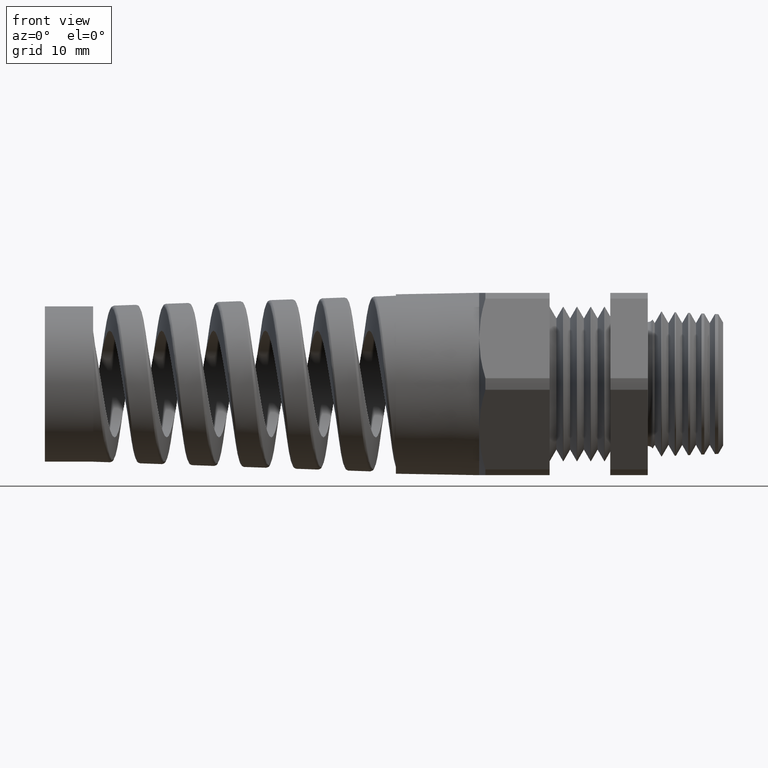
[diagram: clean part render]
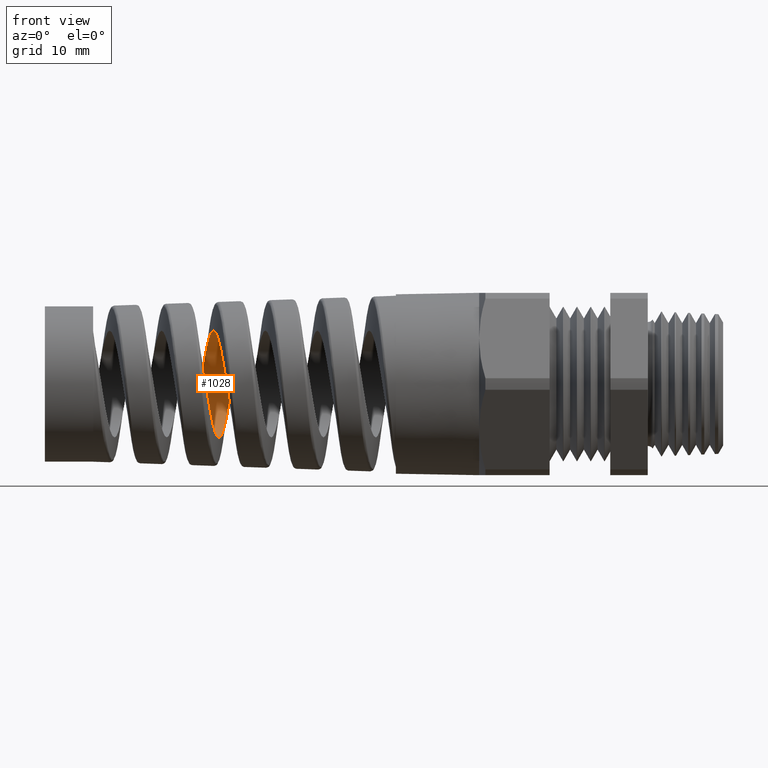
[diagram: same view with one face highlighted and labeled with its STEP entity id]
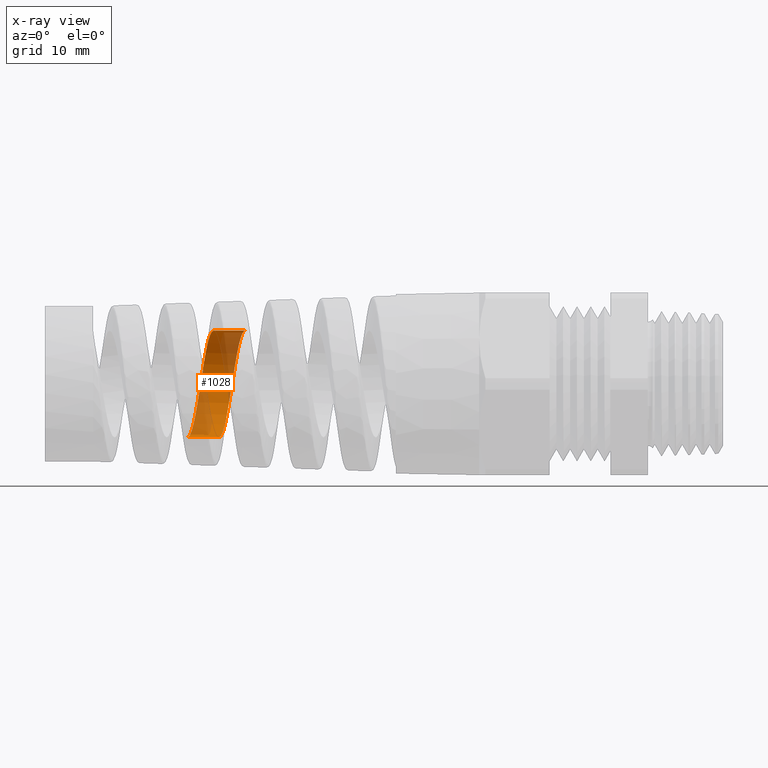
[diagram: x-ray of the same camera — body ghosted, the highlighted face saturated]
A machine part, front view. The second image highlights one B-rep face of the part: STEP entity #1028.
The next image is the same camera in x-ray: the body ghosted, the highlighted face saturated — about 44% of this face is hidden behind the body in this view.
In plain terms, the highlighted cylindrical surface (partial cylindrical patch) has radius 5.5762 mm, axis along (1, 0, 0).
Its self-contained STEP definition (entity closure, byte-faithful):
#1017 = ORIENTED_EDGE ( 'NONE', *, *, #9624, .T. ) ;
#1020 = ORIENTED_EDGE ( 'NONE', *, *, #1021, .F. ) ;
#1021 = EDGE_CURVE ( 'NONE', #9929, #6168, #8122, .T. ) ;
#1022 = ORIENTED_EDGE ( 'NONE', *, *, #1023, .F. ) ;
#1023 = EDGE_CURVE ( 'NONE', #6165, #9626, #8163, .T. ) ;
#1024 = ORIENTED_EDGE ( 'NONE', *, *, #6164, .F. ) ;
#1025 = EDGE_LOOP ( 'NONE', ( #1024, #1020, #1017, #1022 ) ) ;
#1028 = ADVANCED_FACE ( 'NONE', ( #8162 ), #8164, .F. ) ;
#4737 = CARTESIAN_POINT ( 'NONE',  ( 0.4924815508901369000, 2.688517709350620300E-017, 0.2195341310835476100 ) ) ;
#4738 = LINE ( 'NONE', #4737, #4814 ) ;
#4811 = CARTESIAN_POINT ( 'NONE',  ( -1.786182995315624300, -3.746003876187219900E-013, 0.2195341310835476100 ) ) ;
#4812 = CARTESIAN_POINT ( 'NONE',  ( -1.656341165265835700, -7.477569508876677800E-013, 0.2195341310835477500 ) ) ;
#4813 = DIRECTION ( 'NONE',  ( 1.000000000000000000, 0.0000000000000000000, 0.0000000000000000000 ) ) ;
#4814 = VECTOR ( 'NONE', #4813, 39.37007874015748100 ) ;
#4861 = CARTESIAN_POINT ( 'NONE',  ( -1.763792497399998800, 5.731939983487661400E-013, -0.2195341310835477200 ) ) ;
#4862 = DIRECTION ( 'NONE',  ( 1.000000000000000000, 0.0000000000000000000, 0.0000000000000000000 ) ) ;
#4863 = VECTOR ( 'NONE', #4862, 39.37007874015748100 ) ;
#4864 = CARTESIAN_POINT ( 'NONE',  ( 0.4924815508901369000, 0.0000000000000000000, -0.2195341310835476100 ) ) ;
#4868 = LINE ( 'NONE', #4864, #4863 ) ;
#5224 = CARTESIAN_POINT ( 'NONE',  ( -1.892971547334190400, -1.884548264379331500E-015, -0.2195341310835476100 ) ) ;
#6164 = EDGE_CURVE ( 'NONE', #6168, #6165, #4738, .T. ) ;
#6165 = VERTEX_POINT ( 'NONE', #4812 ) ;
#6168 = VERTEX_POINT ( 'NONE', #4811 ) ;
#8081 = CARTESIAN_POINT ( 'NONE',  ( -1.788406360295617300, 0.01436261443662433700, 0.2195341310835720600 ) ) ;
#8082 = CARTESIAN_POINT ( 'NONE',  ( -1.790612561896774100, 0.02859703006535329500, 0.2181377170796372500 ) ) ;
#8083 = CARTESIAN_POINT ( 'NONE',  ( -1.795069746920869000, 0.05679657109202597400, 0.2125464731616664400 ) ) ;
#8084 = CARTESIAN_POINT ( 'NONE',  ( -1.797320305068867500, 0.07076625410027079200, 0.2083080979939359300 ) ) ;
#8085 = CARTESIAN_POINT ( 'NONE',  ( -1.801749773350061800, 0.09721627249518441400, 0.1973553211123972300 ) ) ;
#8086 = CARTESIAN_POINT ( 'NONE',  ( -1.803953803893755500, 0.1098580502667844100, 0.1906194473724774400 ) ) ;
#8087 = CARTESIAN_POINT ( 'NONE',  ( -1.808430979490891900, 0.1339245016456523400, 0.1745531231000225800 ) ) ;
#8088 = CARTESIAN_POINT ( 'NONE',  ( -1.810654780057796800, 0.1450709185505590600, 0.1653910410531466100 ) ) ;
#8089 = CARTESIAN_POINT ( 'NONE',  ( -1.813980096590837300, 0.1602445874606172300, 0.1502266294302360100 ) ) ;
#8090 = CARTESIAN_POINT ( 'NONE',  ( -1.815089389994507800, 0.1650581692131108400, 0.1449232129516549700 ) ) ;
#8091 = CARTESIAN_POINT ( 'NONE',  ( -1.817318637903807800, 0.1741876051096664900, 0.1338118645799900300 ) ) ;
#8092 = CARTESIAN_POINT ( 'NONE',  ( -1.818444388626005100, 0.1785247435358046600, 0.1279695956975562300 ) ) ;
#8093 = CARTESIAN_POINT ( 'NONE',  ( -1.821795268127891700, 0.1905516121694530200, 0.1099708364880471500 ) ) ;
#8094 = CARTESIAN_POINT ( 'NONE',  ( -1.823997994633014700, 0.1972929220097020300, 0.09734471432733107800 ) ) ;
#8095 = CARTESIAN_POINT ( 'NONE',  ( -1.828430063533632600, 0.2082710802763446400, 0.07087769467978281800 ) ) ;
#8096 = CARTESIAN_POINT ( 'NONE',  ( -1.830681946569667500, 0.2125205188775996500, 0.05688779988812109300 ) ) ;
#8097 = CARTESIAN_POINT ( 'NONE',  ( -1.835128900365373900, 0.2181178861115614100, 0.02873639640489126400 ) ) ;
#8098 = CARTESIAN_POINT ( 'NONE',  ( -1.837337311242042800, 0.2195265900893164100, 0.01450244653673377800 ) ) ;
#8099 = CARTESIAN_POINT ( 'NONE',  ( -1.840681090941019200, 0.2195378567085285700, -0.007079313718867968000 ) ) ;
#8100 = CARTESIAN_POINT ( 'NONE',  ( -1.841806503105831900, 0.2191832542773790600, -0.01435069382310476800 ) ) ;
#8101 = CARTESIAN_POINT ( 'NONE',  ( -1.844038394897545200, 0.2177689232868461300, -0.02870431011737417300 ) ) ;
#8102 = CARTESIAN_POINT ( 'NONE',  ( -1.845146853731035800, 0.2167134589758976400, -0.03580086123570883100 ) ) ;
#8103 = CARTESIAN_POINT ( 'NONE',  ( -1.848466746907312200, 0.2125270545986040800, -0.05685285215258115800 ) ) ;
#8104 = CARTESIAN_POINT ( 'NONE',  ( -1.850672491943733800, 0.2083857147089198700, -0.07057291015868406800 ) ) ;
#8105 = CARTESIAN_POINT ( 'NONE',  ( -1.855159127173245900, 0.1973038680489776800, -0.09734641953315302500 ) ) ;
#8106 = CARTESIAN_POINT ( 'NONE',  ( -1.857378371471136300, 0.1905111927068264000, -0.1100240819094262200 ) ) ;
#8107 = CARTESIAN_POINT ( 'NONE',  ( -1.860704521835266500, 0.1785963134989385600, -0.1278660866852212900 ) ) ;
#8108 = CARTESIAN_POINT ( 'NONE',  ( -1.861813785705219000, 0.1743314005983722900, -0.1336248591219224000 ) ) ;
#8109 = CARTESIAN_POINT ( 'NONE',  ( -1.864042441901125200, 0.1652044326519823700, -0.1447568155289428200 ) ) ;
#8110 = CARTESIAN_POINT ( 'NONE',  ( -1.865168032148732100, 0.1603152211544329200, -0.1501539647679436800 ) ) ;
#8111 = CARTESIAN_POINT ( 'NONE',  ( -1.868513109079121200, 0.1450241679710398400, -0.1654418920642327900 ) ) ;
#8112 = CARTESIAN_POINT ( 'NONE',  ( -1.870714867207015700, 0.1339595420494832900, -0.1745152023499546300 ) ) ;
#8113 = CARTESIAN_POINT ( 'NONE',  ( -1.875151464441820100, 0.1101287832475153800, -0.1904530542096257700 ) ) ;
#8114 = CARTESIAN_POINT ( 'NONE',  ( -1.877406418715267700, 0.09723209275907851400, -0.1973494884679117800 ) ) ;
#8115 = CARTESIAN_POINT ( 'NONE',  ( -1.881853002075274200, 0.07073165121557439800, -0.2083217078875239900 ) ) ;
#8116 = CARTESIAN_POINT ( 'NONE',  ( -1.884060068352585200, 0.05704411278400803300, -0.2124820987935290000 ) ) ;
#8117 = CARTESIAN_POINT ( 'NONE',  ( -1.887403643893403000, 0.03585691635110689600, -0.2167057356428304900 ) ) ;
#8118 = CARTESIAN_POINT ( 'NONE',  ( -1.888529053535930300, 0.02865239211625974000, -0.2177754979594001500 ) ) ;
#8119 = CARTESIAN_POINT ( 'NONE',  ( -1.890757524060540300, 0.01431427002313277900, -0.2191853753313697500 ) ) ;
#8120 = CARTESIAN_POINT ( 'NONE',  ( -1.891865045607379600, 0.007152925313654425400, -0.2195341310835476300 ) ) ;
#8121 = CARTESIAN_POINT ( 'NONE',  ( -1.892971547334190400, -1.884548264379331500E-015, -0.2195341310835476100 ) ) ;
#8122 = B_SPLINE_CURVE_WITH_KNOTS ( 'NONE', 3,
 ( #8121, #8120, #8119, #8118, #8117, #8116, #8115, #8114, #8113, #8112, #8111, #8110, #8109, #8108, #8107, #8106, #8105, #8104, #8103, #8102, #8101, #8100, #8099, #8098, #8097, #8096, #8095, #8094, #8093, #8092, #8091, #8090, #8089, #8088, #8087, #8086, #8085, #8084, #8083, #8082, #8081, #8165 ),
 .UNSPECIFIED., .F., .F.,
 ( 4, 2, 2, 2, 2, 2, 2, 2, 2, 2, 2, 2, 2, 2, 2, 2, 2, 2, 2, 2, 4 ),
 ( 0.06435460530667827500, 0.06490724333160481600, 0.06545988135653134400, 0.06656515740638442600, 0.06767043345623749400, 0.06877570950609056300, 0.06932834753101710400, 0.06988098555594364500, 0.07098626160579671300, 0.07209153765564978200, 0.07264417568057632300, 0.07319681370550286400, 0.07430208975535593200, 0.07540736580520900100, 0.07651264185506206900, 0.07706527987998861000, 0.07761791790491513700, 0.07872319395476820600, 0.07982847000462127400, 0.08093374605447434300, 0.08203902210432741100 ),
 .UNSPECIFIED. ) ;
#8123 = CARTESIAN_POINT ( 'NONE',  ( -1.761560180709831600, 0.01434528835452203800, -0.2195341310835102200 ) ) ;
#8124 = CARTESIAN_POINT ( 'NONE',  ( -1.759295391087677900, 0.02889670466611710100, -0.2180952284517184400 ) ) ;
#8125 = CARTESIAN_POINT ( 'NONE',  ( -1.754830109855182400, 0.05700047787738408300, -0.2124888084952191400 ) ) ;
#8126 = CARTESIAN_POINT ( 'NONE',  ( -1.752608191052655200, 0.07069433511366041100, -0.2083398893086599900 ) ) ;
#8127 = CARTESIAN_POINT ( 'NONE',  ( -1.749233715986230800, 0.09067894744185289700, -0.2000613759509082300 ) ) ;
#8128 = CARTESIAN_POINT ( 'NONE',  ( -1.748100148204041000, 0.09725786344697325000, -0.1969464068383803600 ) ) ;
#8129 = CARTESIAN_POINT ( 'NONE',  ( -1.745859208894492200, 0.1099418884361769000, -0.1901571990115183700 ) ) ;
#8130 = CARTESIAN_POINT ( 'NONE',  ( -1.744745288204255300, 0.1160836215715716200, -0.1864697298408239100 ) ) ;
#8131 = CARTESIAN_POINT ( 'NONE',  ( -1.741406482435401600, 0.1339164112749027500, -0.1745455815417658900 ) ) ;
#8132 = CARTESIAN_POINT ( 'NONE',  ( -1.739176432868097200, 0.1450592187453577900, -0.1654165645889714700 ) ) ;
#8133 = CARTESIAN_POINT ( 'NONE',  ( -1.734667747478390500, 0.1655250564509337700, -0.1449354079248617600 ) ) ;
#8134 = CARTESIAN_POINT ( 'NONE',  ( -1.732445026150670500, 0.1745979898838430600, -0.1338489200336782400 ) ) ;
#8135 = CARTESIAN_POINT ( 'NONE',  ( -1.729096460208611400, 0.1865211596002099300, -0.1160012108590440700 ) ) ;
#8136 = CARTESIAN_POINT ( 'NONE',  ( -1.727978049874321100, 0.1902125372818868100, -0.1098475120669393500 ) ) ;
#8137 = CARTESIAN_POINT ( 'NONE',  ( -1.725728101313848100, 0.1970142281302410800, -0.09712198083212095200 ) ) ;
#8138 = CARTESIAN_POINT ( 'NONE',  ( -1.724596215942563400, 0.2001220408578645000, -0.09054336869866568000 ) ) ;
#8139 = CARTESIAN_POINT ( 'NONE',  ( -1.721237613911701800, 0.2083655763717858800, -0.07061029571603645600 ) ) ;
#8140 = CARTESIAN_POINT ( 'NONE',  ( -1.719023462460386400, 0.2125116708802476700, -0.05692187382881382100 ) ) ;
#8141 = CARTESIAN_POINT ( 'NONE',  ( -1.714554712544017700, 0.2181146153443845300, -0.02876325005400494700 ) ) ;
#8142 = CARTESIAN_POINT ( 'NONE',  ( -1.712288731758594600, 0.2195409025777359500, -0.01421713569159723000 ) ) ;
#8143 = CARTESIAN_POINT ( 'NONE',  ( -1.707821921085352700, 0.2195273101503034400, 0.01442549652846553800 ) ) ;
#8144 = CARTESIAN_POINT ( 'NONE',  ( -1.705597743484109400, 0.2181323382247553900, 0.02867002905442307300 ) ) ;
#8145 = CARTESIAN_POINT ( 'NONE',  ( -1.702223729983652500, 0.2139071495681621500, 0.04991071310776109400 ) ) ;
#8146 = CARTESIAN_POINT ( 'NONE',  ( -1.701092929809165500, 0.2121369904910065400, 0.05696301912628246000 ) ) ;
#8147 = CARTESIAN_POINT ( 'NONE',  ( -1.698855523930042700, 0.2079570756428290600, 0.07071593153346232600 ) ) ;
#8148 = CARTESIAN_POINT ( 'NONE',  ( -1.697742677900282000, 0.2055405158395601200, 0.07745615783850329200 ) ) ;
#8149 = CARTESIAN_POINT ( 'NONE',  ( -1.694404653039657300, 0.1973269083198611100, 0.09727192439693307900 ) ) ;
#8150 = CARTESIAN_POINT ( 'NONE',  ( -1.692166817864746000, 0.1905266160286382100, 0.1100175946570835200 ) ) ;
#8151 = CARTESIAN_POINT ( 'NONE',  ( -1.687660164913348000, 0.1744528682040345800, 0.1340539418474526500 ) ) ;
#8152 = CARTESIAN_POINT ( 'NONE',  ( -1.685436009871695800, 0.1653560938315070700, 0.1451120216296088400 ) ) ;
#8153 = CARTESIAN_POINT ( 'NONE',  ( -1.680970860681545200, 0.1451125136992020000, 0.1653556620032865800 ) ) ;
#8154 = CARTESIAN_POINT ( 'NONE',  ( -1.678708208344507300, 0.1338245645098278500, 0.1746214857965616400 ) ) ;
#8155 = CARTESIAN_POINT ( 'NONE',  ( -1.674236158752701900, 0.1099231574385607800, 0.1905743341239351500 ) ) ;
#8156 = CARTESIAN_POINT ( 'NONE',  ( -1.672021810518758800, 0.09730856646004953900, 0.1973136252825382900 ) ) ;
#8157 = CARTESIAN_POINT ( 'NONE',  ( -1.667546588441200800, 0.07076452601658879400, 0.2083122792499169100 ) ) ;
#8158 = CARTESIAN_POINT ( 'NONE',  ( -1.665279544365951400, 0.05678642284265209000, 0.2125451883825763600 ) ) ;
#8159 = CARTESIAN_POINT ( 'NONE',  ( -1.660812822523108900, 0.02870430559071972900, 0.2181197326341748900 ) ) ;
#8160 = CARTESIAN_POINT ( 'NONE',  ( -1.658591566687748000, 0.01445574568503101500, 0.2195341310835968700 ) ) ;
#8161 = CARTESIAN_POINT ( 'NONE',  ( -1.656341165265835700, -7.477569508876677800E-013, 0.2195341310835477500 ) ) ;
#8162 = FACE_OUTER_BOUND ( 'NONE', #1025, .T. ) ;
#8163 = B_SPLINE_CURVE_WITH_KNOTS ( 'NONE', 3,
 ( #8161, #8160, #8159, #8158, #8157, #8156, #8155, #8154, #8153, #8152, #8151, #8150, #8149, #8148, #8147, #8146, #8145, #8144, #8143, #8142, #8141, #8140, #8139, #8138, #8137, #8136, #8135, #8134, #8133, #8132, #8131, #8130, #8129, #8128, #8127, #8126, #8125, #8124, #8123, #8171 ),
 .UNSPECIFIED., .F., .F.,
 ( 4, 2, 2, 2, 2, 2, 2, 2, 2, 2, 2, 2, 2, 2, 2, 2, 2, 2, 2, 4 ),
 ( 0.1267050992969944700, 0.1278078905320148300, 0.1289106817670351800, 0.1300134730020555400, 0.1311162642370759200, 0.1322190554720962800, 0.1333218467071166400, 0.1338732423246268300, 0.1344246379421369900, 0.1355274291771573800, 0.1366302204121777300, 0.1377330116471980900, 0.1382844072647082500, 0.1388358028822184500, 0.1399385941172388000, 0.1410413853522591900, 0.1415927809697693500, 0.1421441765872795400, 0.1432469678222999000, 0.1443497590573202500 ),
 .UNSPECIFIED. ) ;
#8164 = CYLINDRICAL_SURFACE ( 'NONE', #8169, 0.2195341310835476100 ) ;
#8165 = CARTESIAN_POINT ( 'NONE',  ( -1.786182995315624300, -3.746003876187219900E-013, 0.2195341310835476100 ) ) ;
#8166 = DIRECTION ( 'NONE',  ( 0.0000000000000000000, 0.0000000000000000000, -1.000000000000000000 ) ) ;
#8167 = DIRECTION ( 'NONE',  ( 1.000000000000000000, 0.0000000000000000000, 0.0000000000000000000 ) ) ;
#8168 = CARTESIAN_POINT ( 'NONE',  ( 0.4924815508901369000, 0.0000000000000000000, 0.0000000000000000000 ) ) ;
#8169 = AXIS2_PLACEMENT_3D ( 'NONE', #8168, #8167, #8166 ) ;
#8171 = CARTESIAN_POINT ( 'NONE',  ( -1.763792497399998800, 5.731939983487661400E-013, -0.2195341310835477200 ) ) ;
#9624 = EDGE_CURVE ( 'NONE', #9929, #9626, #4868, .T. ) ;
#9626 = VERTEX_POINT ( 'NONE', #4861 ) ;
#9929 = VERTEX_POINT ( 'NONE', #5224 ) ;